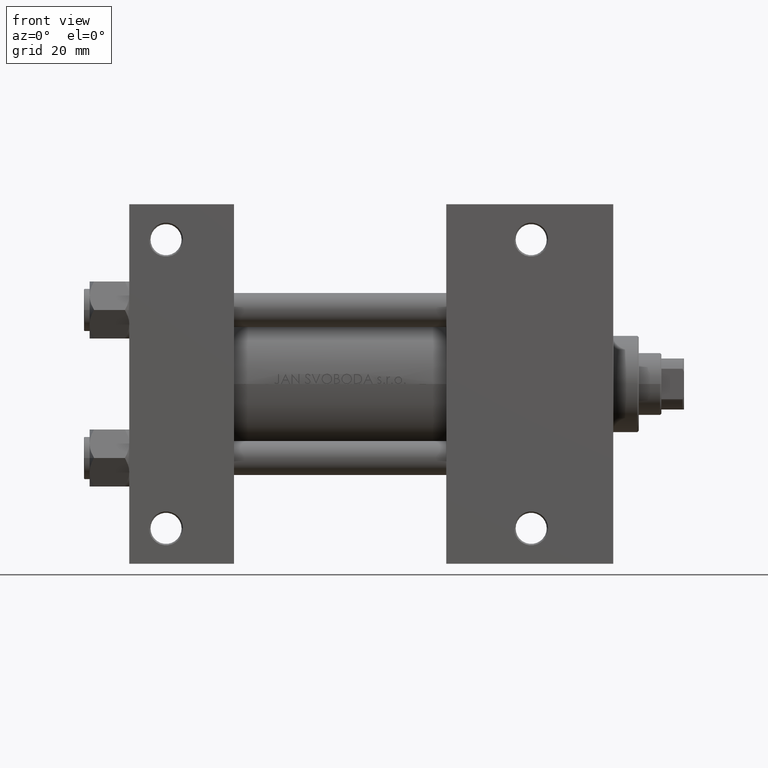
[diagram: clean part render]
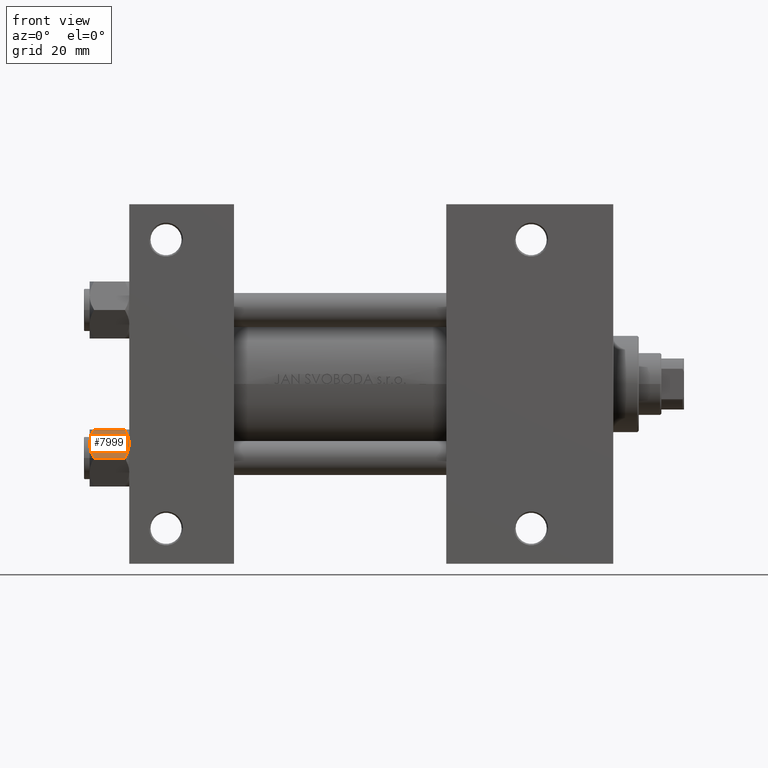
[diagram: same view with one face highlighted and labeled with its STEP entity id]
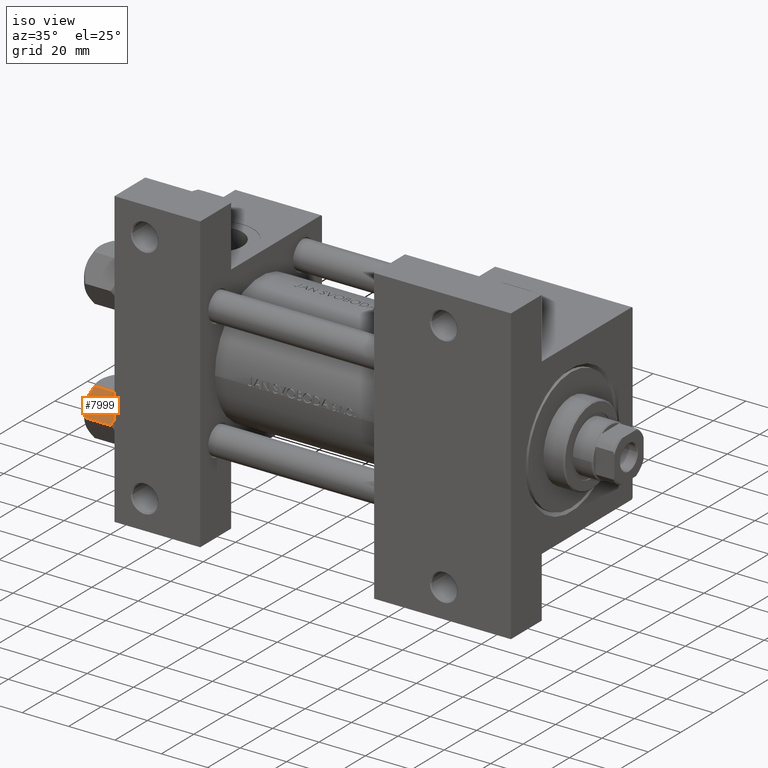
[diagram: same view with one face highlighted and labeled with its STEP entity id]
A machine part, front view. The second image highlights one B-rep face of the part: STEP entity #7999.
A second angle (iso view) of the same face is appended — the face is thin or edge-on in the first view.
In plain terms, the highlighted planar face has unit normal (-0, 0.866, -0.5).
Its self-contained STEP definition (entity closure, byte-faithful):
#1056 = CARTESIAN_POINT ( 'NONE',  ( 11.62000000000000099, -1.607967606633101042E-15, -1.556784808024815669 ) ) ;
#1091 = EDGE_CURVE ( 'NONE', #48431, #32932, #1687, .T. ) ;
#1290 = CARTESIAN_POINT ( 'NONE',  ( 8.715000000000003411, 5.031607595987588333, 0.000000000000000000 ) ) ;
#1575 = VERTEX_POINT ( 'NONE', #1290 ) ;
#1687 = B_SPLINE_CURVE_WITH_KNOTS ( 'NONE', 3,
 ( #45430, #15080, #32336, #3605, #33973, #24886, #4095, #15564 ),
 .UNSPECIFIED., .F., .F.,
 ( 4, 2, 2, 4 ),
 ( 2.544312114902182352E-07, 0.003011550106433540791, 0.004517197944044566184, 0.006022845781655591577 ),
 .UNSPECIFIED. ) ;
#1848 = CARTESIAN_POINT ( 'NONE',  ( 5.810000000000000497, 10.06321519197518022, -1.556784808024817890 ) ) ;
#2910 = CARTESIAN_POINT ( 'NONE',  ( 11.16498164529022574, 0.7881149087337280257, -12.89823354668504862 ) ) ;
#2949 = DIRECTION ( 'NONE',  ( -0.8660254037844387076, -0.4999999999999998335, 0.000000000000000000 ) ) ;
#3131 = CARTESIAN_POINT ( 'NONE',  ( 5.810000000000000497, 10.06321519197518022, -14.00000000000000000 ) ) ;
#3398 = CARTESIAN_POINT ( 'NONE',  ( 8.715000000000003411, 5.031607595987588333, -14.00000000000000000 ) ) ;
#3605 = CARTESIAN_POINT ( 'NONE',  ( 7.455303369716809847, 7.213466161761385997, -13.69973261901326289 ) ) ;
#4095 = CARTESIAN_POINT ( 'NONE',  ( 8.460569896449619876, 5.472293462311864864, -14.00000000000000355 ) ) ;
#5916 = CARTESIAN_POINT ( 'NONE',  ( 9.974696630283190757, 2.849749030213790224, -0.3002673809867378307 ) ) ;
#6206 = CARTESIAN_POINT ( 'NONE',  ( 5.810000000000000497, 10.06321519197518022, -14.00000000000000000 ) ) ;
#6392 = CARTESIAN_POINT ( 'NONE',  ( 11.62000000000000099, -1.607967606633101042E-15, -1.556784808024815669 ) ) ;
#6642 = CARTESIAN_POINT ( 'NONE',  ( 9.716999946243698005, 3.296092779912227044, -13.84547602999601779 ) ) ;
#7999 = ADVANCED_FACE ( 'NONE', ( #25854 ), #13478, .F. ) ;
#8817 = VERTEX_POINT ( 'NONE', #1056 ) ;
#9885 = CARTESIAN_POINT ( 'NONE',  ( 6.265018354709775750, 9.275100283241453525, -1.101766453314955152 ) ) ;
#10128 = CARTESIAN_POINT ( 'NONE',  ( 5.810000000000000497, 10.06321519197518022, -1.556784808024817890 ) ) ;
#10184 = ORIENTED_EDGE ( 'NONE', *, *, #22008, .F. ) ;
#10517 = B_SPLINE_CURVE_WITH_KNOTS ( 'NONE', 3,
 ( #6392, #36763, #17628, #5916, #44012, #21351, #21834, #37007 ),
 .UNSPECIFIED., .F., .F.,
 ( 4, 2, 2, 4 ),
 ( 2.544312114904956385E-07, 0.003011550106433539924, 0.004517197944044563582, 0.006022845781655587240 ),
 .UNSPECIFIED. ) ;
#11586 = CARTESIAN_POINT ( 'NONE',  ( 11.62000000000000099, -1.813166800014576593E-15, -14.00000000000000000 ) ) ;
#12909 = VECTOR ( 'NONE', #19058, 1000.000000000000000 ) ;
#13224 = LINE ( 'NONE', #3131, #27220 ) ;
#13478 = PLANE ( 'NONE',  #39486 ) ;
#13584 = EDGE_CURVE ( 'NONE', #1575, #29139, #40997, .T. ) ;
#14306 = CARTESIAN_POINT ( 'NONE',  ( 8.715000000000003411, 5.031607595987588333, -14.00000000000000000 ) ) ;
#14362 = CARTESIAN_POINT ( 'NONE',  ( 8.715000000000003411, 5.031607595987588333, 0.000000000000000000 ) ) ;
#15080 = CARTESIAN_POINT ( 'NONE',  ( 6.265545725125283738, 9.274186850887380373, -12.89876091710046602 ) ) ;
#15081 = LINE ( 'NONE', #11586, #12909 ) ;
#15564 = CARTESIAN_POINT ( 'NONE',  ( 8.715000000000003411, 5.031607595987588333, -14.00000000000000000 ) ) ;
#17628 = CARTESIAN_POINT ( 'NONE',  ( 10.69859855102501278, 1.595914123792261829, -0.7141438259524660603 ) ) ;
#17845 = CARTESIAN_POINT ( 'NONE',  ( 8.209704053696574633, 5.906805847843726198, 1.265467223197924312E-15 ) ) ;
#19058 = DIRECTION ( 'NONE',  ( -0.000000000000000000, -0.000000000000000000, 1.000000000000000000 ) ) ;
#21099 = B_SPLINE_CURVE_WITH_KNOTS ( 'NONE', 3,
 ( #3398, #48963, #6642, #21845, #2910, #49207 ),
 .UNSPECIFIED., .F., .F.,
 ( 4, 2, 4 ),
 ( 0.006022845781655591577, 0.009013049135303638493, 0.01200325248895168714 ),
 .UNSPECIFIED. ) ;
#21351 = CARTESIAN_POINT ( 'NONE',  ( 9.227666995912102266, 4.143642311704122783, -0.03994118060690848154 ) ) ;
#21834 = CARTESIAN_POINT ( 'NONE',  ( 8.969430103550381617, 4.590921729663312689, 1.314595134138673732E-15 ) ) ;
#21845 = CARTESIAN_POINT ( 'NONE',  ( 10.69662495661650503, 1.599332489581332339, -13.28854452935654962 ) ) ;
#22008 = EDGE_CURVE ( 'NONE', #8817, #1575, #10517, .T. ) ;
#23574 = ORIENTED_EDGE ( 'NONE', *, *, #28826, .F. ) ;
#24886 = CARTESIAN_POINT ( 'NONE',  ( 8.202333004087902779, 5.919572880271052995, -13.96005881939309212 ) ) ;
#25615 = DIRECTION ( 'NONE',  ( 0.4999999999999998335, -0.8660254037844387076, 0.000000000000000000 ) ) ;
#25653 = CARTESIAN_POINT ( 'NONE',  ( 11.62000000000000099, -1.795242522838921761E-15, -12.44321519197518455 ) ) ;
#25854 = FACE_OUTER_BOUND ( 'NONE', #41589, .T. ) ;
#27220 = VECTOR ( 'NONE', #37244, 1000.000000000000000 ) ;
#28826 = EDGE_CURVE ( 'NONE', #40720, #8817, #15081, .T. ) ;
#29139 = VERTEX_POINT ( 'NONE', #1848 ) ;
#29286 = CARTESIAN_POINT ( 'NONE',  ( 7.713000053756308816, 6.767122412062953174, -0.1545239700039844066 ) ) ;
#32336 = CARTESIAN_POINT ( 'NONE',  ( 6.731401448974989599, 8.467301068182914392, -13.28585617404753272 ) ) ;
#32509 = ORIENTED_EDGE ( 'NONE', *, *, #39104, .F. ) ;
#32932 = VERTEX_POINT ( 'NONE', #14306 ) ;
#33693 = EDGE_CURVE ( 'NONE', #48431, #29139, #13224, .T. ) ;
#33973 = CARTESIAN_POINT ( 'NONE',  ( 7.700834831386346835, 6.788193195293095172, -13.80960203119265728 ) ) ;
#34035 = ORIENTED_EDGE ( 'NONE', *, *, #33693, .T. ) ;
#36763 = CARTESIAN_POINT ( 'NONE',  ( 11.16445427487472131, 0.7890283410877951820, -1.101239082899533317 ) ) ;
#37007 = CARTESIAN_POINT ( 'NONE',  ( 8.715000000000003411, 5.031607595987588333, 0.000000000000000000 ) ) ;
#37244 = DIRECTION ( 'NONE',  ( -0.000000000000000000, -0.000000000000000000, 1.000000000000000000 ) ) ;
#39104 = EDGE_CURVE ( 'NONE', #32932, #40720, #21099, .T. ) ;
#39114 = CARTESIAN_POINT ( 'NONE',  ( 5.810000000000000497, 10.06321519197518022, -12.44321519197518278 ) ) ;
#39486 = AXIS2_PLACEMENT_3D ( 'NONE', #6206, #2949, #25615 ) ;
#40720 = VERTEX_POINT ( 'NONE', #25653 ) ;
#40737 = ORIENTED_EDGE ( 'NONE', *, *, #13584, .F. ) ;
#40997 = B_SPLINE_CURVE_WITH_KNOTS ( 'NONE', 3,
 ( #14362, #17845, #29286, #44711, #9885, #10128 ),
 .UNSPECIFIED., .F., .F.,
 ( 4, 2, 4 ),
 ( 0.006022845781655587240, 0.009013049135303635023, 0.01200325248895168367 ),
 .UNSPECIFIED. ) ;
#41589 = EDGE_LOOP ( 'NONE', ( #43421, #34035, #40737, #10184, #23574, #32509 ) ) ;
#43421 = ORIENTED_EDGE ( 'NONE', *, *, #1091, .F. ) ;
#44012 = CARTESIAN_POINT ( 'NONE',  ( 9.729165168613654657, 3.275021996682081493, -0.1903979688073423326 ) ) ;
#44711 = CARTESIAN_POINT ( 'NONE',  ( 6.733375043383499126, 8.463882702393842550, -0.7114554706434507159 ) ) ;
#45430 = CARTESIAN_POINT ( 'NONE',  ( 5.810000000000000497, 10.06321519197518022, -12.44321519197518278 ) ) ;
#48431 = VERTEX_POINT ( 'NONE', #39114 ) ;
#48963 = CARTESIAN_POINT ( 'NONE',  ( 9.220295946303432189, 4.156409344131451356, -14.00000000000000178 ) ) ;
#49207 = CARTESIAN_POINT ( 'NONE',  ( 11.62000000000000099, -1.795242522838921761E-15, -12.44321519197518455 ) ) ;